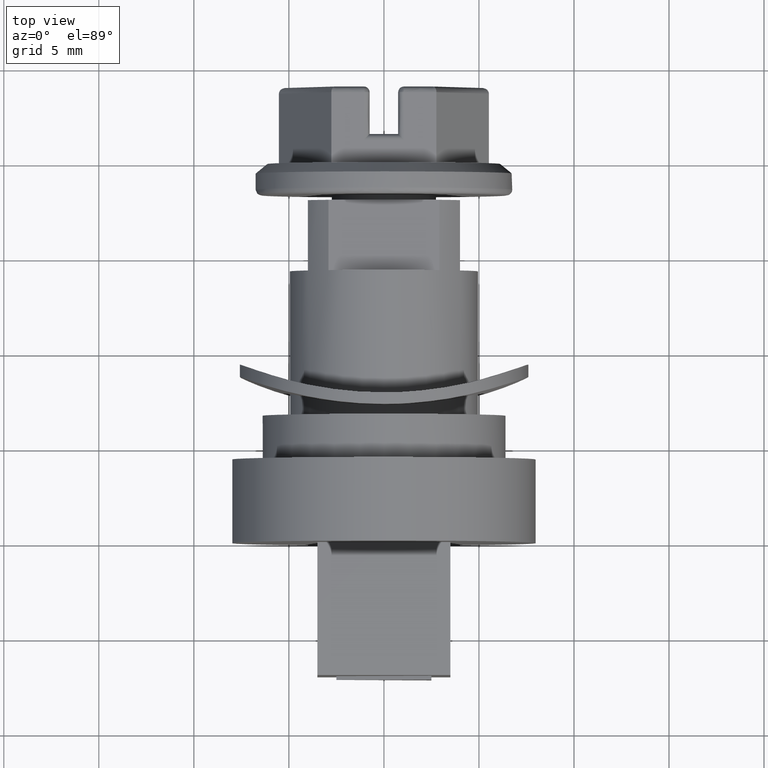
[diagram: clean part render]
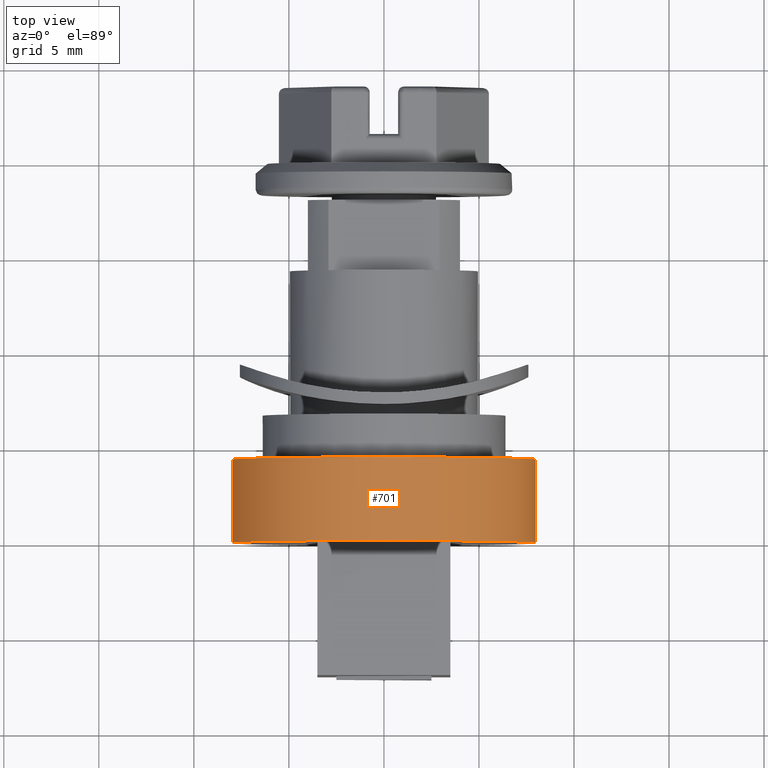
[diagram: same view with one face highlighted and labeled with its STEP entity id]
A machine part, top view. The second image highlights one B-rep face of the part: STEP entity #701.
In plain terms, the highlighted face is a freeform B-spline surface patch.
Its self-contained STEP definition (entity closure, byte-faithful):
#538=CARTESIAN_POINT('',(-7.944077661814875,4.400000208988816,0.944264890083837));
#539=VERTEX_POINT('',#538);
#557=CARTESIAN_POINT('',(7.985079307980459,4.400000208988836,-0.488379488571689));
#558=VERTEX_POINT('',#557);
#572=CARTESIAN_POINT('',(7.985079301455787,5.759282E-016,-0.488379595252968));
#573=VERTEX_POINT('',#572);
#574=CARTESIAN_POINT('',(7.985079307980459,4.400000208988836,-0.488379488571689));
#575=CARTESIAN_POINT('',(7.985079301455787,5.759282E-016,-0.488379595252968));
#576=QUASI_UNIFORM_CURVE('',1,(#574,#575),.UNSPECIFIED.,.F.,.U.);
#577=EDGE_CURVE('',#558,#573,#576,.T.);
#594=CARTESIAN_POINT('',(-7.944077648877688,3.194357E-016,0.944264998925119));
#595=VERTEX_POINT('',#594);
#611=CARTESIAN_POINT('',(-7.944077661814875,4.400000208988816,0.944264890083837));
#612=CARTESIAN_POINT('',(-7.944077648877688,3.194357E-016,0.944264998925119));
#613=QUASI_UNIFORM_CURVE('',1,(#611,#612),.UNSPECIFIED.,.F.,.U.);
#614=EDGE_CURVE('',#539,#595,#613,.T.);
#619=CARTESIAN_POINT('',(7.985078766645803,4.510000214213506,-0.488388339476056));
#620=CARTESIAN_POINT('',(8.473467106121859,4.510000214213507,7.496690427169746));
#621=CARTESIAN_POINT('',(0.488388339476056,4.510000214213506,7.985078766645803));
#622=CARTESIAN_POINT('',(-7.052348261684557,4.510000214213505,8.446289975037447));
#623=CARTESIAN_POINT('',(-7.944076588232701,4.510000214213506,0.944273922104670));
#624=CARTESIAN_POINT('',(7.985078766645803,-0.112750005355338,-0.488388339476056));
#625=CARTESIAN_POINT('',(8.473467106121859,-0.112750005355338,7.496690427169746));
#626=CARTESIAN_POINT('',(0.488388339476056,-0.112750005355338,7.985078766645803));
#627=CARTESIAN_POINT('',(-7.052348261684557,-0.112750005355338,8.446289975037447));
#628=CARTESIAN_POINT('',(-7.944076588232701,-0.112750005355338,0.944273922104670));
#636=(BOUNDED_SURFACE()B_SPLINE_SURFACE(2,1,((#619,#624),(#620,#625),(#621,#626),(#622,#627),(#623,#628)),.UNSPECIFIED.,.F.,.F.,.U.)B_SPLINE_SURFACE_WITH_KNOTS((3,2,3),(2,2),(0.0,13.254834625509870,25.979475865999341),(0.0,4.622750219568845),.UNSPECIFIED.)GEOMETRIC_REPRESENTATION_ITEM()RATIONAL_B_SPLINE_SURFACE(((1.0,1.0),(0.707106781186548,0.707106781186548),(1.0,1.0),(0.718822509939086,0.718822509939086),(0.977505800795127,0.977505800795127)))REPRESENTATION_ITEM('')SURFACE());
#637=CARTESIAN_POINT('',(0.0,4.400000208988786,8.000000379979609));
#638=VERTEX_POINT('',#637);
#639=CARTESIAN_POINT('',(0.0,4.400000208988786,8.000000379979609));
#640=CARTESIAN_POINT('',(-7.105404680455376,4.400000208988787,8.000000379979609));
#641=CARTESIAN_POINT('',(-7.944077661814875,4.400000208988816,0.944264890083837));
#649=(BOUNDED_CURVE()B_SPLINE_CURVE(2,(#639,#640,#641),.UNSPECIFIED.,.F.,.U.)B_SPLINE_CURVE_WITH_KNOTS((3,3),(0.0,0.229562665663964),.UNSPECIFIED.)CURVE()GEOMETRIC_REPRESENTATION_ITEM()RATIONAL_B_SPLINE_CURVE((1.0,0.731050607737140,0.956027130806803))REPRESENTATION_ITEM(''));
#650=EDGE_CURVE('',#638,#539,#649,.T.);
#651=ORIENTED_EDGE('',*,*,#650,.T.);
#652=ORIENTED_EDGE('',*,*,#614,.T.);
#653=CARTESIAN_POINT('',(0.0,0.0,8.000000379979609));
#654=VERTEX_POINT('',#653);
#655=CARTESIAN_POINT('',(0.0,0.0,8.000000379979609));
#656=CARTESIAN_POINT('',(-7.105404582419404,0.0,8.000000379979609));
#657=CARTESIAN_POINT('',(-7.944077648877688,3.194357E-016,0.944264998925119));
#665=(BOUNDED_CURVE()B_SPLINE_CURVE(2,(#655,#656,#657),.UNSPECIFIED.,.F.,.U.)B_SPLINE_CURVE_WITH_KNOTS((3,3),(0.0,0.229562663348461),.UNSPECIFIED.)CURVE()GEOMETRIC_REPRESENTATION_ITEM()RATIONAL_B_SPLINE_CURVE((1.0,0.731050610449921,0.956027126268314))REPRESENTATION_ITEM(''));
#666=EDGE_CURVE('',#654,#595,#665,.T.);
#667=ORIENTED_EDGE('',*,*,#666,.F.);
#668=CARTESIAN_POINT('',(7.985079301455786,5.759282E-016,-0.488379595252968));
#669=CARTESIAN_POINT('',(8.000000379979609,0.0,-0.244417733627985));
#670=CARTESIAN_POINT('',(8.000000379979609,0.0,0.0));
#671=CARTESIAN_POINT('',(8.000000379979610,0.0,8.000000379979610));
#672=CARTESIAN_POINT('',(0.0,0.0,8.000000379979609));
#680=(BOUNDED_CURVE()B_SPLINE_CURVE(2,(#668,#669,#670,#671,#672),.UNSPECIFIED.,.F.,.U.)B_SPLINE_CURVE_WITH_KNOTS((3,2,3),(0.739333151192870,0.750000000000000,1.0),.UNSPECIFIED.)CURVE()GEOMETRIC_REPRESENTATION_ITEM()RATIONAL_B_SPLINE_CURVE((0.976072446631288,0.987503009273133,1.0,0.707106781186547,1.0))REPRESENTATION_ITEM(''));
#681=EDGE_CURVE('',#573,#654,#680,.T.);
#682=ORIENTED_EDGE('',*,*,#681,.F.);
#683=ORIENTED_EDGE('',*,*,#577,.F.);
#684=CARTESIAN_POINT('',(7.985079307980459,4.400000208988836,-0.488379488571689));
#685=CARTESIAN_POINT('',(8.000000379979607,4.400000208988787,-0.244417680137792));
#686=CARTESIAN_POINT('',(8.000000379979609,4.400000208988786,0.0));
#687=CARTESIAN_POINT('',(8.000000379979610,4.400000208988785,8.000000379979610));
#688=CARTESIAN_POINT('',(0.0,4.400000208988786,8.000000379979609));
#696=(BOUNDED_CURVE()B_SPLINE_CURVE(2,(#684,#685,#686,#687,#688),.UNSPECIFIED.,.F.,.U.)B_SPLINE_CURVE_WITH_KNOTS((3,2,3),(0.739333153498110,0.750000000000000,1.0),.UNSPECIFIED.)CURVE()GEOMETRIC_REPRESENTATION_ITEM()RATIONAL_B_SPLINE_CURVE((0.976072451571863,0.987503011973889,1.0,0.707106781186547,1.0))REPRESENTATION_ITEM(''));
#697=EDGE_CURVE('',#558,#638,#696,.T.);
#698=ORIENTED_EDGE('',*,*,#697,.T.);
#699=EDGE_LOOP('',(#651,#652,#667,#682,#683,#698));
#700=FACE_OUTER_BOUND('',#699,.T.);
#701=ADVANCED_FACE('',(#700),#636,.T.);